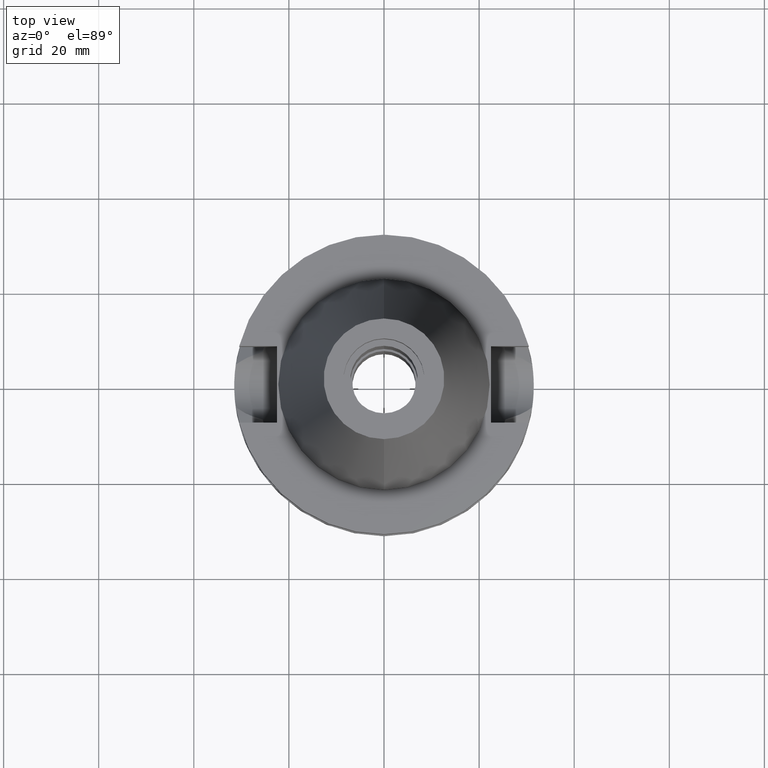
[diagram: clean part render]
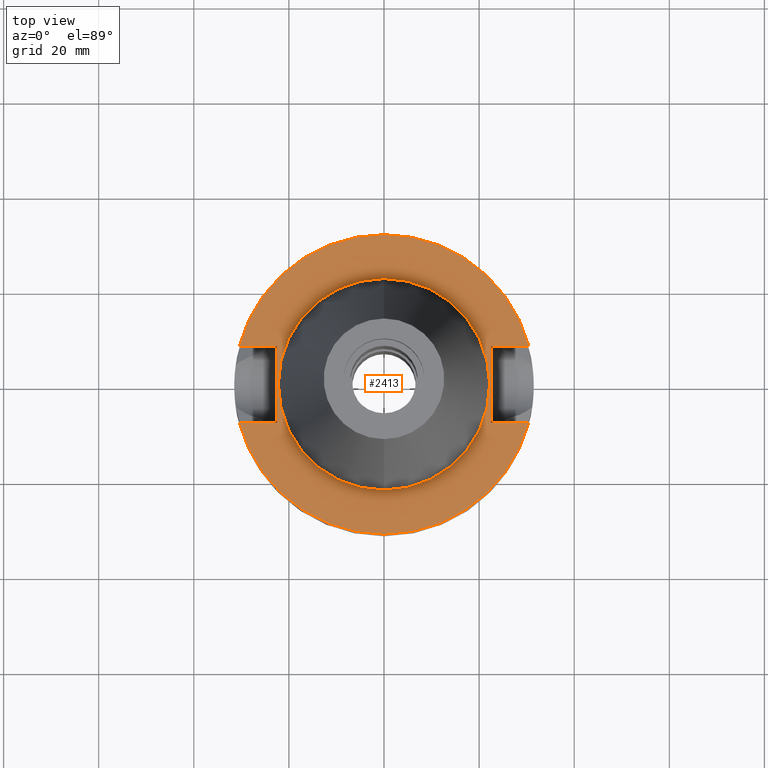
[diagram: same view with one face highlighted and labeled with its STEP entity id]
A machine part, top view. The second image highlights one B-rep face of the part: STEP entity #2413.
In plain terms, the highlighted planar face has unit normal (0, 0, -1).
Its self-contained STEP definition (entity closure, byte-faithful):
#11 = DIRECTION ( 'NONE',  ( -1.000000000000000000, -3.550916904668000126E-14, 0.0000000000000000000 ) ) ;
#38 = ORIENTED_EDGE ( 'NONE', *, *, #1008, .F. ) ;
#77 = CARTESIAN_POINT ( 'NONE',  ( -30.45402272279000044, -8.050000000000000711, -2.000000000000000000 ) ) ;
#124 = DIRECTION ( 'NONE',  ( 0.0000000000000000000, 0.0000000000000000000, 1.000000000000000000 ) ) ;
#158 = VERTEX_POINT ( 'NONE', #514 ) ;
#190 = VERTEX_POINT ( 'NONE', #2139 ) ;
#239 = CARTESIAN_POINT ( 'NONE',  ( -22.50000000000000000, 8.050000000000000711, -2.000000000000000000 ) ) ;
#262 = ORIENTED_EDGE ( 'NONE', *, *, #1031, .F. ) ;
#281 = DIRECTION ( 'NONE',  ( 0.0000000000000000000, 0.0000000000000000000, -1.000000000000000000 ) ) ;
#322 = EDGE_CURVE ( 'NONE', #753, #2220, #643, .T. ) ;
#366 = CARTESIAN_POINT ( 'NONE',  ( 22.50000000000000000, 8.050000000000000711, -2.000000000000000000 ) ) ;
#381 = ORIENTED_EDGE ( 'NONE', *, *, #971, .F. ) ;
#396 = DIRECTION ( 'NONE',  ( 1.000000000000000000, 3.573249715389999860E-14, 0.0000000000000000000 ) ) ;
#399 = VERTEX_POINT ( 'NONE', #77 ) ;
#404 = DIRECTION ( 'NONE',  ( 1.000000000000000000, -3.506251283225999947E-14, 0.0000000000000000000 ) ) ;
#475 = LINE ( 'NONE', #1812, #2653 ) ;
#502 = CARTESIAN_POINT ( 'NONE',  ( 0.0000000000000000000, 1.200153863163999924E-14, -2.000000000000000000 ) ) ;
#514 = CARTESIAN_POINT ( 'NONE',  ( 30.45402272279000044, -8.050000000000000711, -2.000000000000000000 ) ) ;
#517 = CARTESIAN_POINT ( 'NONE',  ( 22.50000000000000000, -8.050000000000000711, -2.000000000000000000 ) ) ;
#608 = DIRECTION ( 'NONE',  ( 0.0000000000000000000, 1.000000000000000000, 0.0000000000000000000 ) ) ;
#643 = CIRCLE ( 'NONE', #1622, 22.22500000000000142 ) ;
#727 = CARTESIAN_POINT ( 'NONE',  ( 30.45402272279000044, 8.050000000000000711, -2.000000000000000000 ) ) ;
#728 = EDGE_CURVE ( 'NONE', #2828, #158, #2621, .T. ) ;
#753 = VERTEX_POINT ( 'NONE', #2067 ) ;
#856 = EDGE_CURVE ( 'NONE', #2220, #753, #2688, .T. ) ;
#875 = AXIS2_PLACEMENT_3D ( 'NONE', #3550, #1377, #3034 ) ;
#932 = VECTOR ( 'NONE', #396, 1000.000000000000000 ) ;
#971 = EDGE_CURVE ( 'NONE', #158, #399, #2232, .T. ) ;
#993 = ORIENTED_EDGE ( 'NONE', *, *, #728, .F. ) ;
#1007 = ORIENTED_EDGE ( 'NONE', *, *, #1314, .F. ) ;
#1008 = EDGE_CURVE ( 'NONE', #2585, #1292, #1330, .T. ) ;
#1031 = EDGE_CURVE ( 'NONE', #1853, #1130, #1141, .T. ) ;
#1055 = DIRECTION ( 'NONE',  ( 0.0000000000000000000, -1.000000000000000000, 0.0000000000000000000 ) ) ;
#1104 = DIRECTION ( 'NONE',  ( 0.0000000000000000000, 1.000000000000000000, 0.0000000000000000000 ) ) ;
#1130 = VERTEX_POINT ( 'NONE', #3393 ) ;
#1141 = LINE ( 'NONE', #3057, #2872 ) ;
#1157 = AXIS2_PLACEMENT_3D ( 'NONE', #2587, #124, #1246 ) ;
#1159 = EDGE_CURVE ( 'NONE', #190, #1292, #2815, .T. ) ;
#1246 = DIRECTION ( 'NONE',  ( 0.0000000000000000000, -1.000000000000000000, 0.0000000000000000000 ) ) ;
#1292 = VERTEX_POINT ( 'NONE', #727 ) ;
#1314 = EDGE_CURVE ( 'NONE', #1130, #2585, #1392, .T. ) ;
#1330 = CIRCLE ( 'NONE', #1960, 31.50000000000000000 ) ;
#1377 = DIRECTION ( 'NONE',  ( 0.0000000000000000000, 0.0000000000000000000, -1.000000000000000000 ) ) ;
#1392 = LINE ( 'NONE', #239, #3435 ) ;
#1433 = EDGE_LOOP ( 'NONE', ( #2203, #381, #993, #1631, #1816, #38, #1007, #262 ) ) ;
#1435 = EDGE_LOOP ( 'NONE', ( #2772, #3189 ) ) ;
#1468 = CARTESIAN_POINT ( 'NONE',  ( -30.45402272279000044, 8.050000000000000711, -2.000000000000000000 ) ) ;
#1622 = AXIS2_PLACEMENT_3D ( 'NONE', #2612, #2943, #3439 ) ;
#1631 = ORIENTED_EDGE ( 'NONE', *, *, #3252, .F. ) ;
#1649 = CARTESIAN_POINT ( 'NONE',  ( 0.0000000000000000000, -22.22500000000000142, -2.000000000000000000 ) ) ;
#1812 = CARTESIAN_POINT ( 'NONE',  ( 22.50000000000000000, 8.050000000000000711, -2.000000000000000000 ) ) ;
#1816 = ORIENTED_EDGE ( 'NONE', *, *, #1159, .T. ) ;
#1852 = FACE_OUTER_BOUND ( 'NONE', #1433, .T. ) ;
#1853 = VERTEX_POINT ( 'NONE', #1875 ) ;
#1875 = CARTESIAN_POINT ( 'NONE',  ( -22.50000000000000000, -8.050000000000000711, -2.000000000000000000 ) ) ;
#1918 = LINE ( 'NONE', #3304, #3229 ) ;
#1960 = AXIS2_PLACEMENT_3D ( 'NONE', #2450, #281, #1104 ) ;
#2067 = CARTESIAN_POINT ( 'NONE',  ( 0.0000000000000000000, 22.22500000000000142, -2.000000000000000000 ) ) ;
#2139 = CARTESIAN_POINT ( 'NONE',  ( 22.50000000000000000, 8.050000000000000711, -2.000000000000000000 ) ) ;
#2203 = ORIENTED_EDGE ( 'NONE', *, *, #3455, .T. ) ;
#2220 = VERTEX_POINT ( 'NONE', #1649 ) ;
#2232 = CIRCLE ( 'NONE', #875, 31.50000000000000000 ) ;
#2399 = DIRECTION ( 'NONE',  ( 0.0000000000000000000, 0.0000000000000000000, -1.000000000000000000 ) ) ;
#2413 = ADVANCED_FACE ( 'NONE', ( #1852, #2952 ), #3505, .F. ) ;
#2450 = CARTESIAN_POINT ( 'NONE',  ( 0.0000000000000000000, 2.097452572899999775E-14, -2.000000000000000000 ) ) ;
#2585 = VERTEX_POINT ( 'NONE', #1468 ) ;
#2587 = CARTESIAN_POINT ( 'NONE',  ( 0.0000000000000000000, 2.097452572899999775E-14, -2.000000000000000000 ) ) ;
#2612 = CARTESIAN_POINT ( 'NONE',  ( 0.0000000000000000000, 2.097452572899999775E-14, -2.000000000000000000 ) ) ;
#2621 = LINE ( 'NONE', #2859, #932 ) ;
#2653 = VECTOR ( 'NONE', #2906, 1000.000000000000000 ) ;
#2688 = CIRCLE ( 'NONE', #1157, 22.22500000000000142 ) ;
#2772 = ORIENTED_EDGE ( 'NONE', *, *, #322, .F. ) ;
#2810 = AXIS2_PLACEMENT_3D ( 'NONE', #502, #2399, #1055 ) ;
#2815 = LINE ( 'NONE', #366, #2926 ) ;
#2828 = VERTEX_POINT ( 'NONE', #517 ) ;
#2859 = CARTESIAN_POINT ( 'NONE',  ( 22.50000000000000000, -8.050000000000000711, -2.000000000000000000 ) ) ;
#2872 = VECTOR ( 'NONE', #608, 1000.000000000000000 ) ;
#2906 = DIRECTION ( 'NONE',  ( 0.0000000000000000000, -1.000000000000000000, 0.0000000000000000000 ) ) ;
#2926 = VECTOR ( 'NONE', #404, 1000.000000000000000 ) ;
#2943 = DIRECTION ( 'NONE',  ( 0.0000000000000000000, 0.0000000000000000000, 1.000000000000000000 ) ) ;
#2952 = FACE_BOUND ( 'NONE', #1435, .T. ) ;
#3034 = DIRECTION ( 'NONE',  ( 0.0000000000000000000, -1.000000000000000000, 0.0000000000000000000 ) ) ;
#3057 = CARTESIAN_POINT ( 'NONE',  ( -22.50000000000000000, -8.050000000000000711, -2.000000000000000000 ) ) ;
#3189 = ORIENTED_EDGE ( 'NONE', *, *, #856, .F. ) ;
#3225 = DIRECTION ( 'NONE',  ( -1.000000000000000000, 3.550916904668000126E-14, 0.0000000000000000000 ) ) ;
#3229 = VECTOR ( 'NONE', #3225, 1000.000000000000000 ) ;
#3252 = EDGE_CURVE ( 'NONE', #190, #2828, #475, .T. ) ;
#3304 = CARTESIAN_POINT ( 'NONE',  ( -22.50000000000000000, -8.050000000000000711, -2.000000000000000000 ) ) ;
#3393 = CARTESIAN_POINT ( 'NONE',  ( -22.50000000000000000, 8.050000000000000711, -2.000000000000000000 ) ) ;
#3435 = VECTOR ( 'NONE', #11, 1000.000000000000000 ) ;
#3439 = DIRECTION ( 'NONE',  ( 0.0000000000000000000, 1.000000000000000000, 0.0000000000000000000 ) ) ;
#3455 = EDGE_CURVE ( 'NONE', #1853, #399, #1918, .T. ) ;
#3505 = PLANE ( 'NONE',  #2810 ) ;
#3550 = CARTESIAN_POINT ( 'NONE',  ( 0.0000000000000000000, 2.097452572899999775E-14, -2.000000000000000000 ) ) ;